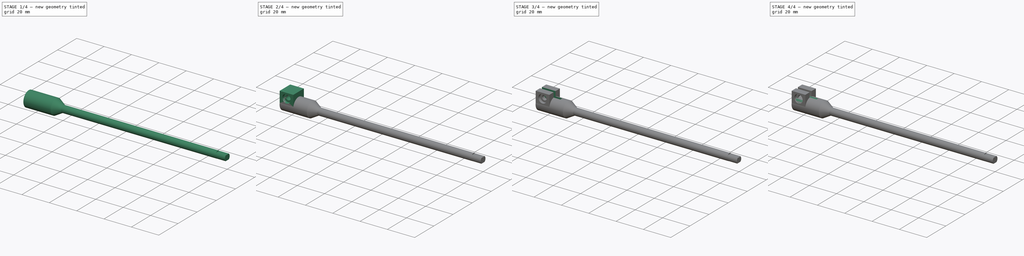
[diagram: build sequence overview — one tinted view per stage of 4, left to right]
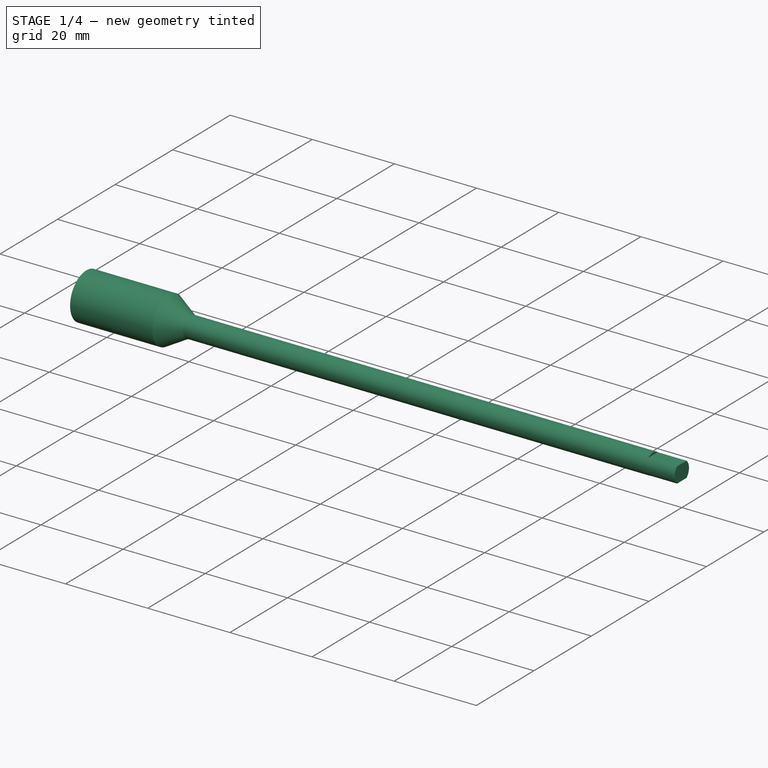
[diagram: stage 1 of 4 — iso view after this stage's code; geometry added in this stage tinted green]
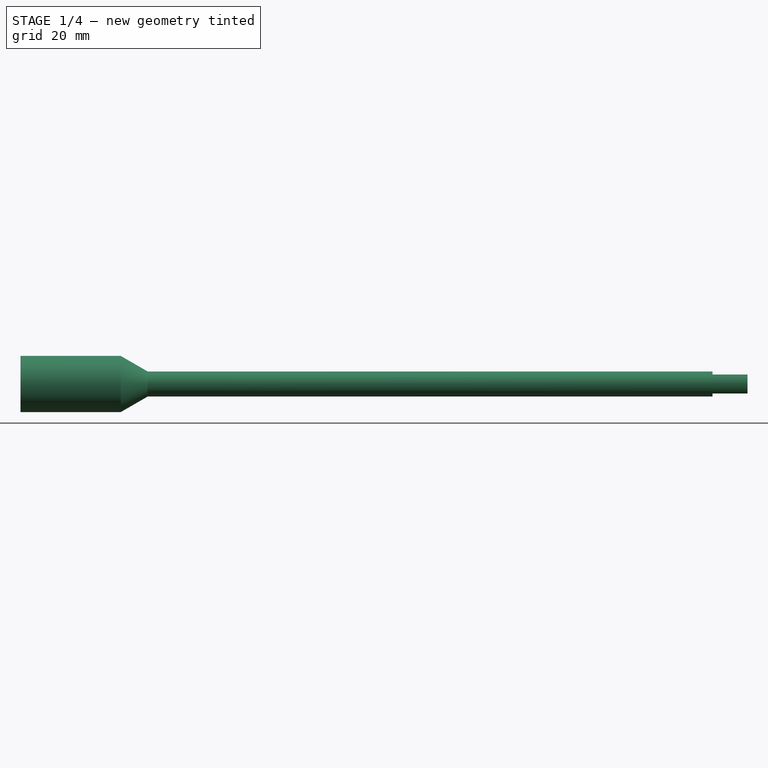
[diagram: stage 1 of 4 — front view after this stage's code; geometry added in this stage tinted green]
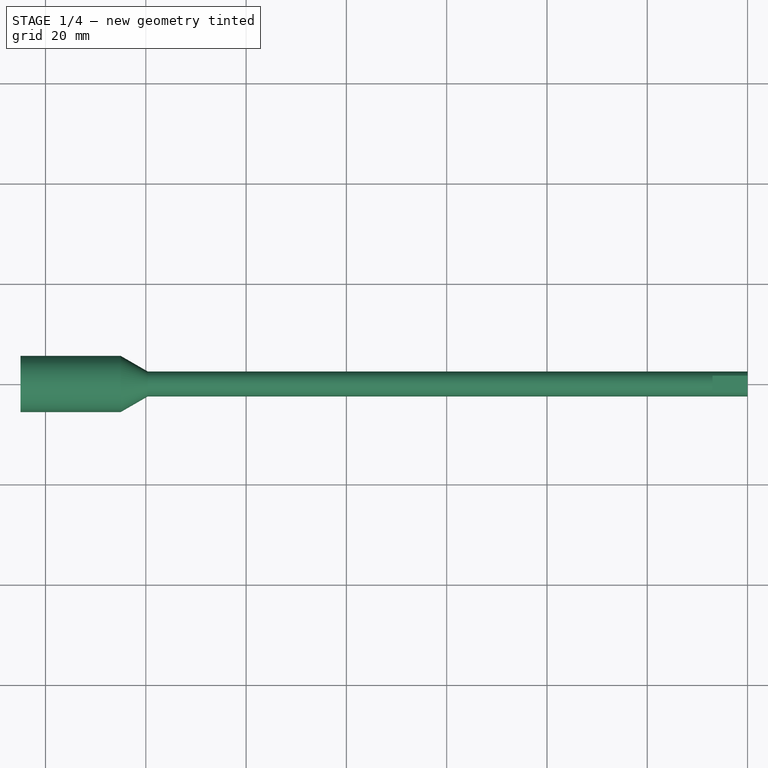
[diagram: stage 1 of 4 — top view after this stage's code; geometry added in this stage tinted green]
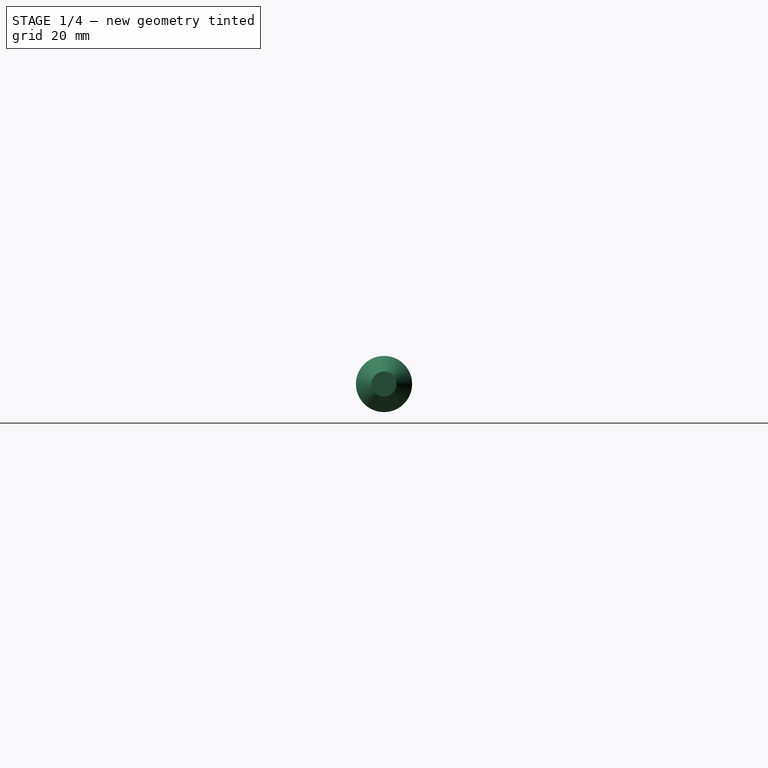
[diagram: stage 1 of 4 — right view after this stage's code; geometry added in this stage tinted green]
FCSTD DOCUMENT  (FreeCAD 2024.1R35694 (Git))
Label: shaft0
License: All rights reserved
LicenseURL: https://en.wikipedia.org/wiki/All_rights_reserved
objects: Sketcher::SketchObject×10, PartDesign::Pocket×5, PartDesign::Revolution×2, PartDesign::Body×2, PartDesign::Chamfer×2, PartDesign::Pad×1, PartDesign::Hole×1, PartDesign::Fillet×1, PartDesign::Groove×1, App::Part×1
note: 38 computed .brp shape members not serialized (recipe doc carries the construction recipe); baked Part::Feature solids carry a one-line shape summary decoded from their .brp

FEATURE [PartDesign::Body] Body  label="shaft0_skel"
  Group = -> [Sketch,Revolution,Sketch001,Pocket]
  Origin = -> Origin001
  Tip = -> Pocket
FEATURE [Sketcher::SketchObject] Sketch002
  FullyConstrained = true
  MapMode = 5
  Support = -> [XY_Plane002]
  sketch-geometry (8):
    g0: LineSegment StartX=0 StartY=0 StartZ=0 EndX=0 EndY=2.5 EndZ=0
    g1: LineSegment StartX=0 StartY=2.5 StartZ=0 EndX=-119.631 EndY=2.5 EndZ=0
    g2: LineSegment StartX=-119.631 StartY=2.5 StartZ=0 EndX=-125 EndY=5.6 EndZ=0
    g3: LineSegment StartX=-125 StartY=5.6 StartZ=0 EndX=-145 EndY=5.6 EndZ=0
    g4: LineSegment StartX=-145 StartY=5.6 StartZ=0 EndX=-145 EndY=2.6 EndZ=0
    g5: LineSegment StartX=-145 StartY=2.6 StartZ=0 EndX=-130 EndY=2.6 EndZ=0
    g6: LineSegment StartX=-130 StartY=2.6 StartZ=0 EndX=-130 EndY=0 EndZ=0
    g7: LineSegment StartX=-130 StartY=0 StartZ=0 EndX=0 EndY=0 EndZ=0
  constraints (23):
    c: Coincident(g-1,g0)
    c: PointOnObject(g0,g-2)
    c: Coincident(g0,g1)
    c: Horizontal(g1)
    c: Coincident(g1,g2)
    c: Coincident(g2,g3)
    c: Horizontal(g3)
    c: Coincident(g3,g4)
    c: Vertical(g4)
    c: Coincident(g4,g5)
    c: Horizontal(g5)
    c: Coincident(g5,g6)
    c: PointOnObject(g6,g-1)
    c: Vertical(g6)
    c: Coincident(g6,g7)
    c: Coincident(g7,g0)
    c: DistanceY(g-1,g5) = 2.6
    c: DistanceY(g4,g4) = 3
    c: DistanceY(g-1,g0) = 2.5
    c: DistanceX(g3,g3) = 20
    c: DistanceX(g5,g5) = 15
    c: DistanceX(g4,g-1) = 145
    c: Angle(g2,g3) = 0.523599
FEATURE [PartDesign::Revolution] Revolution001
  Angle = 360
  Angle2 = 60
  Axis = (1,0,0)
  Base = (0,0,0)
  Profile = -> Sketch002
  ReferenceAxis = -> Sketch002 [H_Axis]
  Refine = true
  Type = 0
FEATURE [Sketcher::SketchObject] Sketch003
  FullyConstrained = true
  MapMode = 5
  Placement = pos=(0,0,0) rot=(0.57735,0.57735,0.57735;2.0944rad)
  Support = -> [Revolution001]
  sketch-geometry (8):
    g0: LineSegment StartX=-7.5 StartY=1.9 StartZ=0 EndX=7.5 EndY=1.9 EndZ=0
    g1: LineSegment StartX=7.5 StartY=1.9 StartZ=0 EndX=7.5 EndY=6.9 EndZ=0
    g2: LineSegment StartX=7.5 StartY=6.9 StartZ=0 EndX=-7.5 EndY=6.9 EndZ=0
    g3: LineSegment StartX=-7.5 StartY=6.9 StartZ=0 EndX=-7.5 EndY=1.9 EndZ=0
    g4: LineSegment StartX=-7.5 StartY=-6.9 StartZ=0 EndX=7.5 EndY=-6.9 EndZ=0
    g5: LineSegment StartX=7.5 StartY=-6.9 StartZ=0 EndX=7.5 EndY=-1.9 EndZ=0
    g6: LineSegment StartX=7.5 StartY=-1.9 StartZ=0 EndX=-7.5 EndY=-1.9 EndZ=0
    g7: LineSegment StartX=-7.5 StartY=-1.9 StartZ=0 EndX=-7.5 EndY=-6.9 EndZ=0
  constraints (21):
    c: Coincident(g0,g1)
    c: Coincident(g1,g2)
    c: Coincident(g2,g3)
    c: Coincident(g3,g0)
    c: Horizontal(g0)
    c: Vertical(g1)
    c: Vertical(g3)
    c: Coincident(g4,g5)
    c: Coincident(g5,g6)
    c: Coincident(g6,g7)
    c: Coincident(g7,g4)
    c: Horizontal(g4)
    c: Vertical(g5)
    c: Vertical(g7)
    c: Symmetric(g5,g0,g-1)
    c: Symmetric(g6,g0,g-1)
    c: Equal(g3,g7)
    c: Symmetric(g2,g1,g-2)
    c: DistanceY(g5,g0) = 3.8
    c: DistanceY(g5,g5) = 5
    c: DistanceX(g4,g4) = 15
FEATURE [PartDesign::Pocket] Pocket001
  BaseFeature = -> Revolution001
  Direction = (-1,0,0)
  Length = 7
  Length2 = 5
  Profile = -> Sketch003
  ReferenceAxis = -> Sketch003 [N_Axis]
  Refine = true
  Type = 0
FEATURE [PartDesign::Chamfer] Chamfer
  Angle = 15
  Base = -> Pocket001 [Edge20]
  BaseFeature = -> Pocket001
  ChamferType = 2
  FlipDirection = true
  Refine = true
  Size = 2
  Size2 = 1
  SupportTransform = false
  UseAllEdges = false
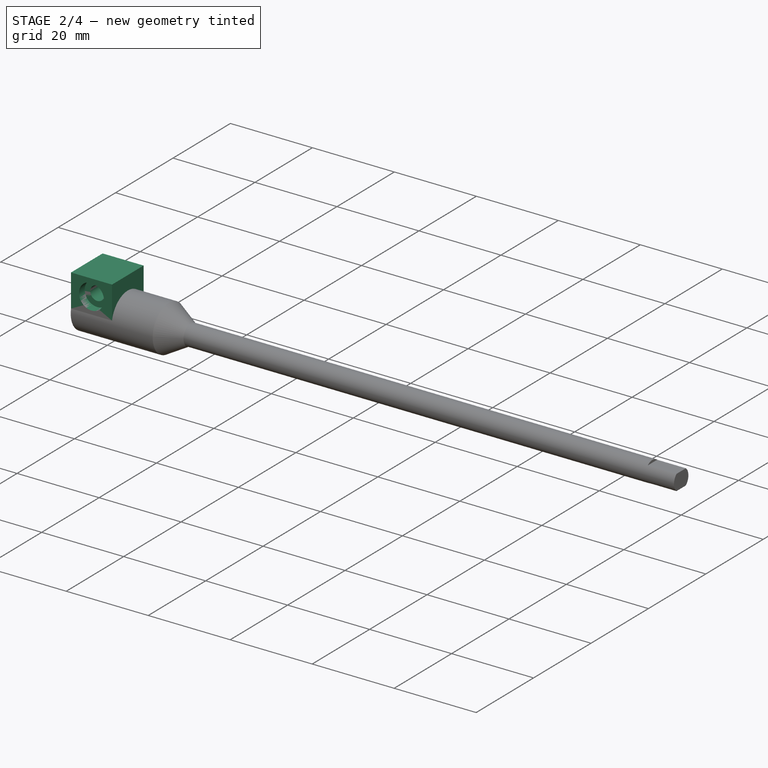
[diagram: stage 2 of 4 — iso view after this stage's code; geometry added in this stage tinted green]
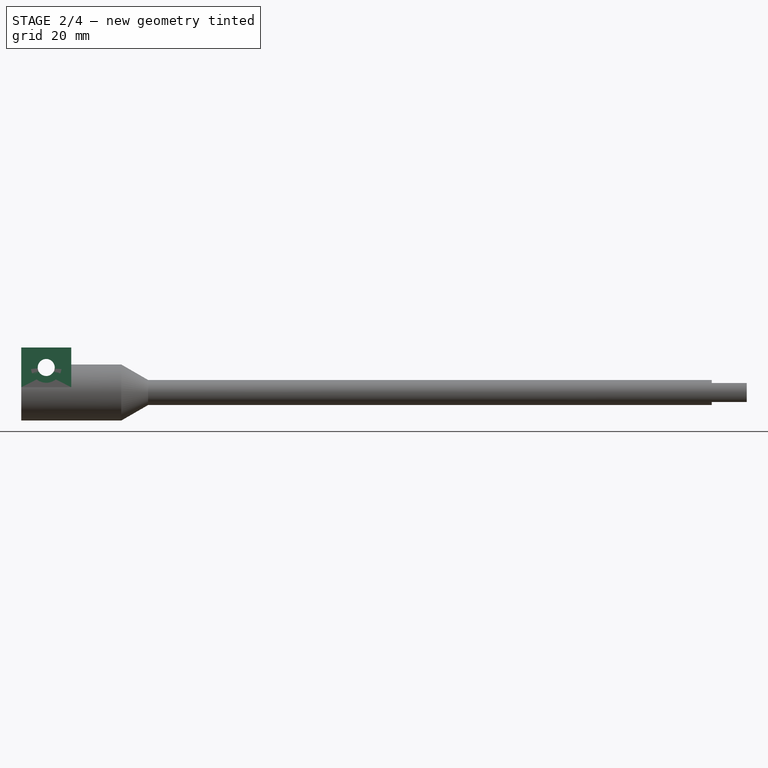
[diagram: stage 2 of 4 — front view after this stage's code; geometry added in this stage tinted green]
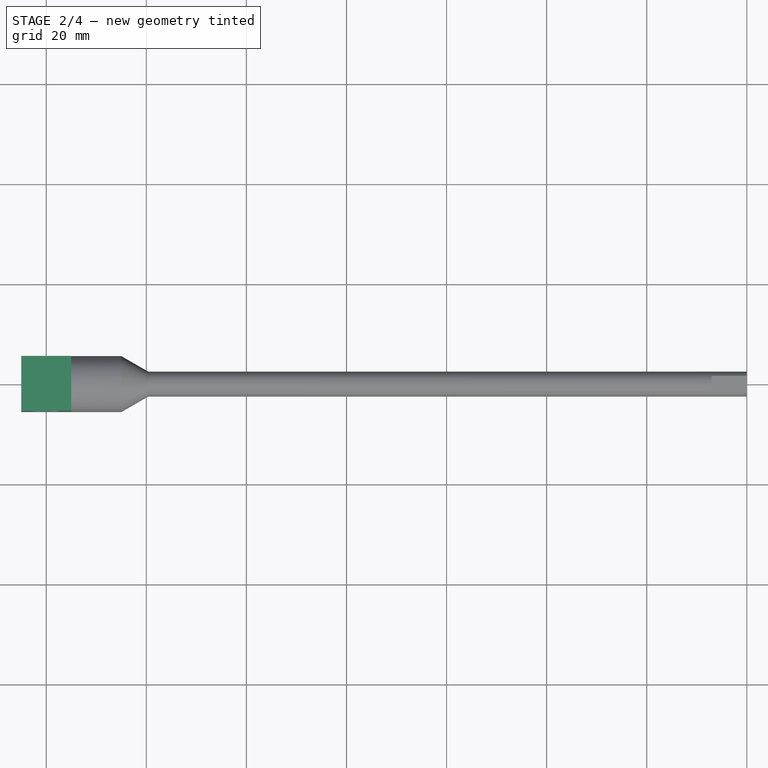
[diagram: stage 2 of 4 — top view after this stage's code; geometry added in this stage tinted green]
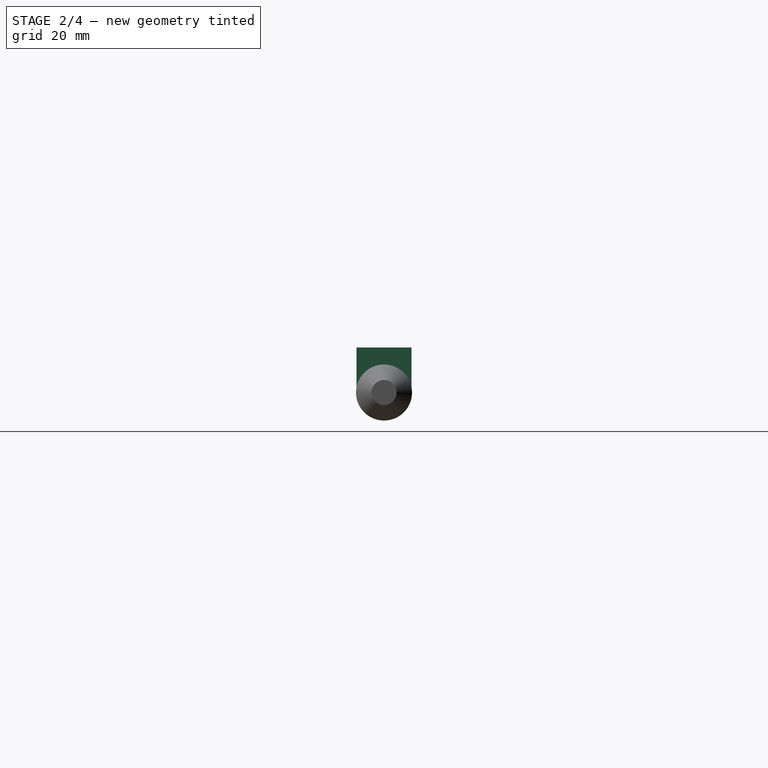
[diagram: stage 2 of 4 — right view after this stage's code; geometry added in this stage tinted green]
FEATURE [Sketcher::SketchObject] Sketch004
  ExternalGeometry = -> [Chamfer]
  FullyConstrained = true
  MapMode = 5
  Placement = pos=(-145,0,0) rot=(0.57735,-0.57735,-0.57735;2.0944rad)
  Support = -> [Chamfer]
  sketch-geometry (4):
    g0: ArcOfCircle CenterX=0 CenterY=0 CenterZ=0 NormalX=0 NormalY=0 NormalZ=1 AngleXU=0 Radius=5.6 StartAngle=0.189265 EndAngle=2.95233
    g1: LineSegment StartX=-5.5 StartY=1.05357 StartZ=0 EndX=-5.5 EndY=9 EndZ=0
    g2: LineSegment StartX=-5.5 StartY=9 StartZ=0 EndX=5.5 EndY=9 EndZ=0
    g3: LineSegment StartX=5.5 StartY=9 StartZ=0 EndX=5.5 EndY=1.05357 EndZ=0
  constraints (11):
    c: Coincident(g0,g-3)
    c: Vertical(g1)
    c: Coincident(g1,g2)
    c: Coincident(g2,g3)
    c: Vertical(g3)
    c: Symmetric(g1,g2,g-2)
    c: Coincident(g0,g1)
    c: Coincident(g0,g3)
    c: Equal(g0,g-3)
    c: DistanceX(g2,g2) = 11
    c: DistanceY(g-1,g2) = 9
FEATURE [PartDesign::Pad] Pad
  BaseFeature = -> Chamfer
  Direction = (-1,0,0)
  Length = 10
  Length2 = 10
  Profile = -> Sketch004
  ReferenceAxis = -> Sketch004 [N_Axis]
  Refine = true
  Reversed = true
  Type = 0
FEATURE [Sketcher::SketchObject] Sketch005
  ExternalGeometry = -> [Pad]
  FullyConstrained = true
  MapMode = 5
  Placement = pos=(0,-5.5,0) rot=(1,0,0;1.5708rad)
  Support = -> [Pad]
  sketch-geometry (1):
    g0: Circle CenterX=-140 CenterY=5 CenterZ=0 NormalX=0 NormalY=0 NormalZ=1 AngleXU=0 Radius=1.5
  constraints (3):
    c: DistanceX(g-3,g0) = 5
    c: DistanceY(g-1,g0) = 5
    c: Diameter(g0) = 3
FEATURE [PartDesign::Hole] Hole
  BaseFeature = -> Pad
  CustomThreadClearance = 0
  Depth = 25
  DepthType = 0
  Diameter = 3.4
  DrillForDepth = false
  DrillPoint = 1
  DrillPointAngle = 118
  HoleCutCountersinkAngle = 90
  HoleCutCustomValues = false
  HoleCutDepth = 2
  HoleCutDiameter = 6.1
  HoleCutType = 1
  ModelThread = false
  Profile = -> Sketch005
  Refine = true
  Tapered = false
  TaperedAngle = 90
  ThreadClass = 0
  ThreadDepth = 25
  ThreadDepthType = 0
  ThreadDirection = 0
  ThreadFit = 0
  ThreadSize = 9
  ThreadType = 1
  Threaded = false
  UseCustomThreadClearance = false
FEATURE [Sketcher::SketchObject] Sketch006
  ExternalGeometry = -> [Hole]
  FullyConstrained = true
  MapMode = 5
  Placement = pos=(0,5.5,0) rot=(0,0.707107,0.707107;3.14159rad)
  Support = -> [Hole]
  sketch-geometry (7):
    g0: LineSegment StartX=143.522 StartY=5 StartZ=0 EndX=141.761 EndY=8.05 EndZ=0
    g1: LineSegment StartX=141.761 StartY=8.05 StartZ=0 EndX=138.239 EndY=8.05 EndZ=0
    g2: LineSegment StartX=138.239 StartY=8.05 StartZ=0 EndX=136.478 EndY=5 EndZ=0
    g3: LineSegment StartX=136.478 StartY=5 StartZ=0 EndX=138.239 EndY=1.95 EndZ=0
    g4: LineSegment StartX=138.239 StartY=1.95 StartZ=0 EndX=141.761 EndY=1.95 EndZ=0
    g5: LineSegment StartX=141.761 StartY=1.95 StartZ=0 EndX=143.522 EndY=5 EndZ=0
    g6: Circle CenterX=140 CenterY=5 CenterZ=0 NormalX=0 NormalY=0 NormalZ=1 AngleXU=0 Radius=3.52184
  constraints (16):
    c: Coincident(g0,g1)
    c: Coincident(g1,g2)
    c: Coincident(g2,g3)
    c: Coincident(g3,g4)
    c: Coincident(g4,g5)
    c: Coincident(g5,g0)
    c: Equal(g0, g1-g5) x5
    c: PointOnObject(g0,g6)
    c: PointOnObject(g1,g6)
    c: PointOnObject(g2,g6)
    c: PointOnObject(g3,g6)
    c: PointOnObject(g4,g6)
    c: PointOnObject(g5,g6)
    c: Coincident(g6,g-3)
    c: DistanceY(g4,g0) = 6.1
    c: Horizontal(g4)
FEATURE [PartDesign::Pocket] Pocket002
  BaseFeature = -> Hole
  Direction = (0,-1,2e-16)
  Length = 3
  Length2 = 5
  Profile = -> Sketch006
  ReferenceAxis = -> Sketch006 [N_Axis]
  Refine = true
  Type = 0
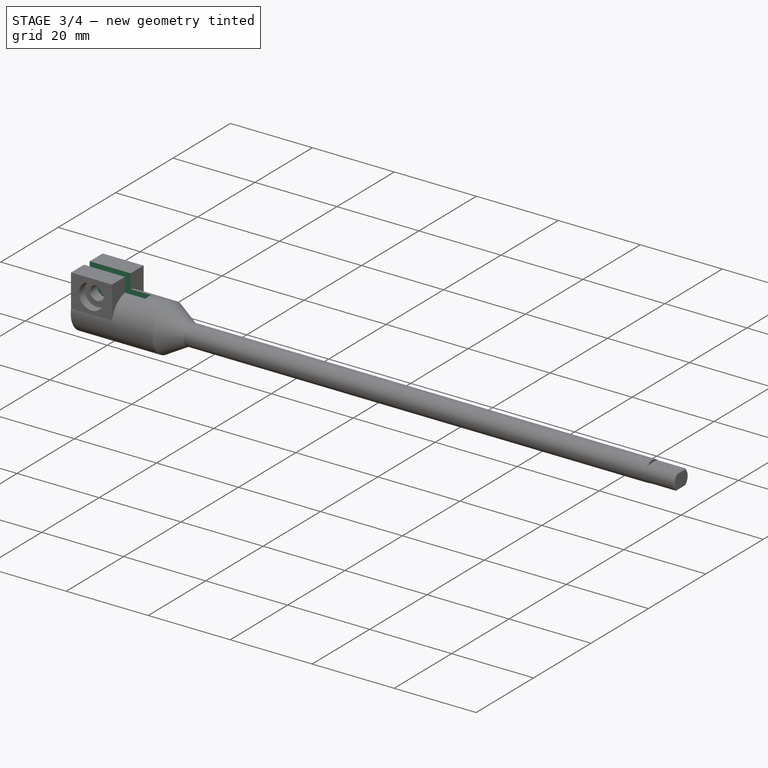
[diagram: stage 3 of 4 — iso view after this stage's code; geometry added in this stage tinted green]
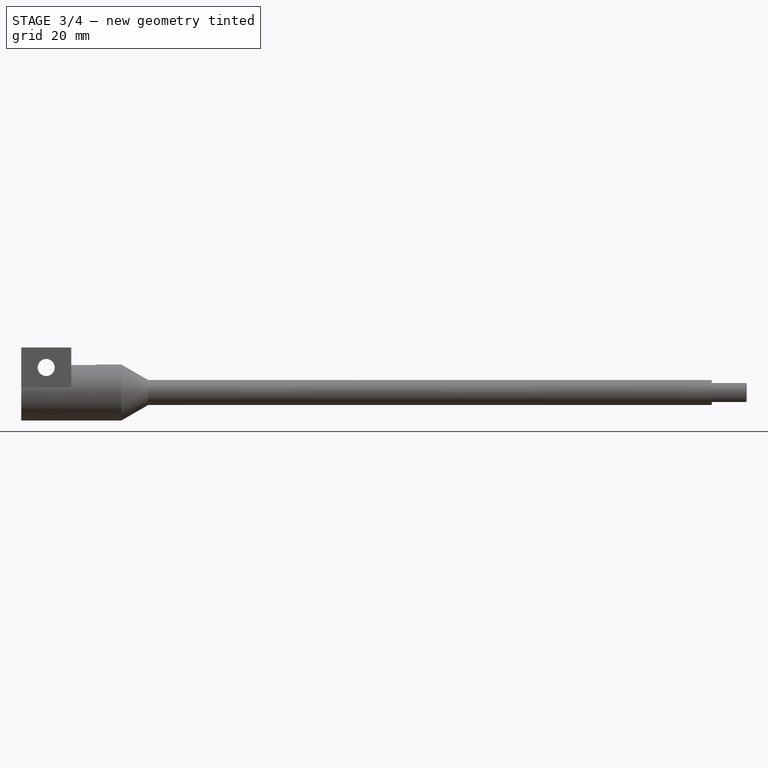
[diagram: stage 3 of 4 — front view after this stage's code; geometry added in this stage tinted green]
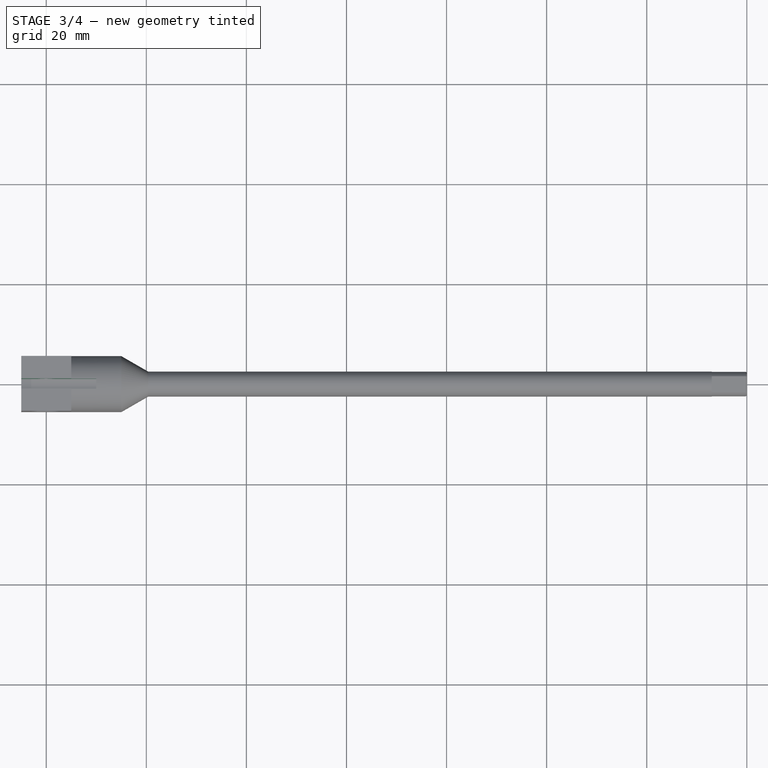
[diagram: stage 3 of 4 — top view after this stage's code; geometry added in this stage tinted green]
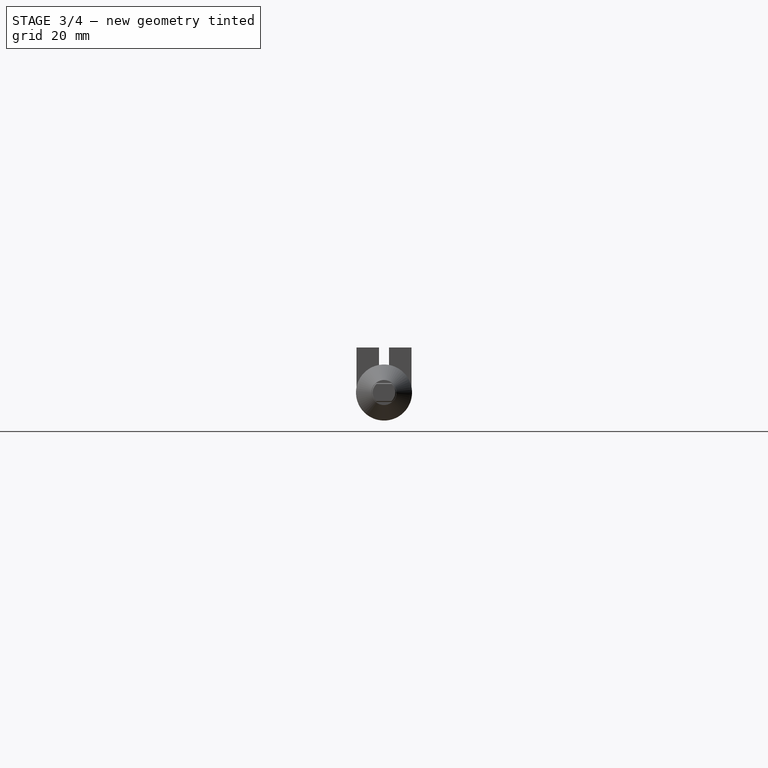
[diagram: stage 3 of 4 — right view after this stage's code; geometry added in this stage tinted green]
FEATURE [Sketcher::SketchObject] Sketch007
  FullyConstrained = true
  MapMode = 5
  Placement = pos=(0,0,0) rot=(0.57735,0.57735,0.57735;2.0944rad)
  Support = -> [Pocket002]
  sketch-geometry (2):
    g0: Circle CenterX=0 CenterY=0 CenterZ=0 NormalX=0 NormalY=0 NormalZ=1 AngleXU=0 Radius=2.45
    g1: Circle CenterX=0 CenterY=0 CenterZ=0 NormalX=0 NormalY=0 NormalZ=1 AngleXU=0 Radius=5
  constraints (4):
    c: Coincident(g1,g0)
    c: Diameter(g0) = 4.9
    c: Diameter(g1) = 10
    c: Coincident(g0,g-1)
FEATURE [PartDesign::Pocket] Pocket003
  BaseFeature = -> Pocket002
  Direction = (-1,0,0)
  Length = 0
  Length2 = 5
  Profile = -> Sketch007
  ReferenceAxis = -> Sketch007 [N_Axis]
  Refine = true
  Type = 3
  UpToFace = -> Pocket002 [Face24]
FEATURE [PartDesign::Fillet] Fillet
  Base = -> Pocket003
  BaseFeature = -> Pocket003
  Radius = 3
  Refine = true
  SupportTransform = false
  UseAllEdges = false
FEATURE [Sketcher::SketchObject] Sketch008
  FullyConstrained = true
  MapMode = 5
  Placement = pos=(-145,0,0) rot=(0.57735,-0.57735,-0.57735;2.0944rad)
  Support = -> [Fillet]
  sketch-geometry (4):
    g0: LineSegment StartX=1 StartY=0 StartZ=0 EndX=1 EndY=15 EndZ=0
    g1: LineSegment StartX=1 StartY=15 StartZ=0 EndX=-1 EndY=15 EndZ=0
    g2: LineSegment StartX=-1 StartY=15 StartZ=0 EndX=-1 EndY=0 EndZ=0
    g3: LineSegment StartX=-1 StartY=0 StartZ=0 EndX=1 EndY=0 EndZ=0
  constraints (11):
    c: Coincident(g0,g1)
    c: Coincident(g1,g2)
    c: Coincident(g2,g3)
    c: Coincident(g3,g0)
    c: Vertical(g0)
    c: Vertical(g2)
    c: Horizontal(g3)
    c: PointOnObject(g0,g-1)
    c: Symmetric(g1,g0,g-2)
    c: DistanceX(g1,g1) = 2
    c: DistanceY(g0,g0) = 15
FEATURE [PartDesign::Pocket] Pocket004
  BaseFeature = -> Fillet
  Direction = (1,0,0)
  Length = 15
  Length2 = 5
  Profile = -> Sketch008
  ReferenceAxis = -> Sketch008 [N_Axis]
  Refine = true
  Type = 0
FEATURE [PartDesign::Chamfer] Chamfer001
  Angle = 45
  Base = -> Pocket004 [Edge86,Edge87,Edge85,Edge81,Edge84]
  BaseFeature = -> Pocket004
  ChamferType = 0
  FlipDirection = false
  Refine = true
  Size = 0.2
  Size2 = 1
  SupportTransform = false
  UseAllEdges = false
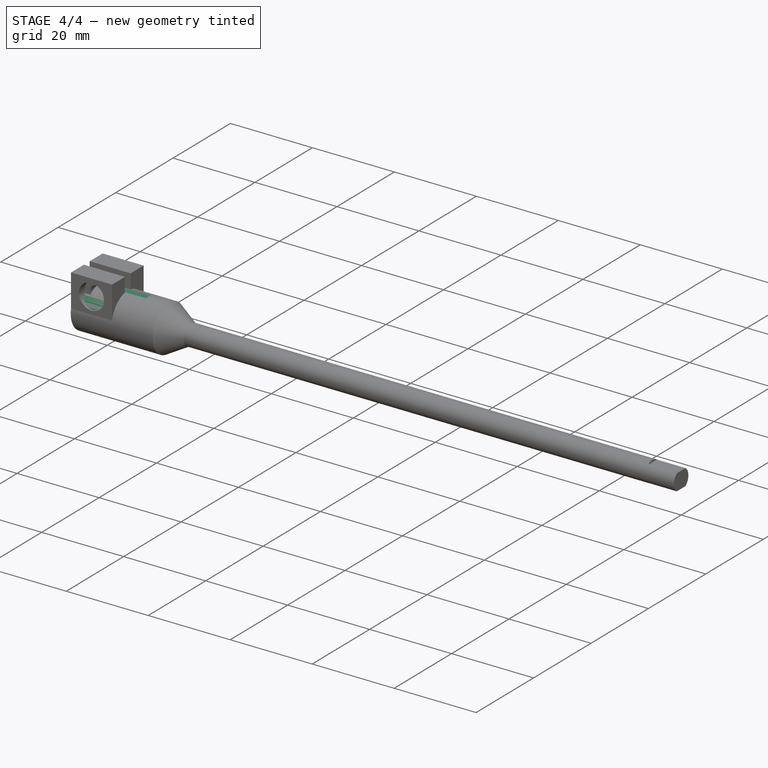
[diagram: stage 4 of 4 — iso view after this stage's code; geometry added in this stage tinted green]
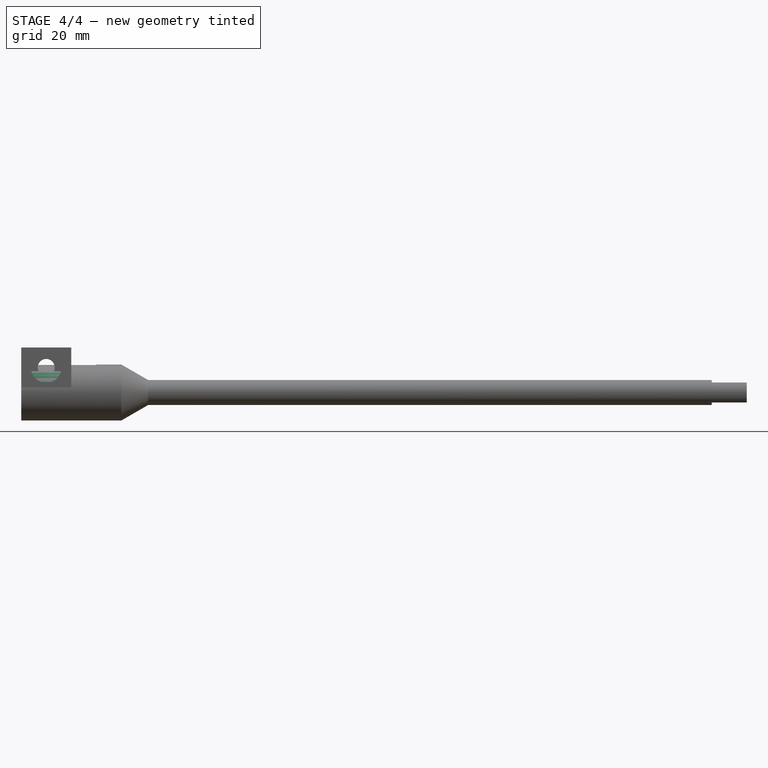
[diagram: stage 4 of 4 — front view after this stage's code; geometry added in this stage tinted green]
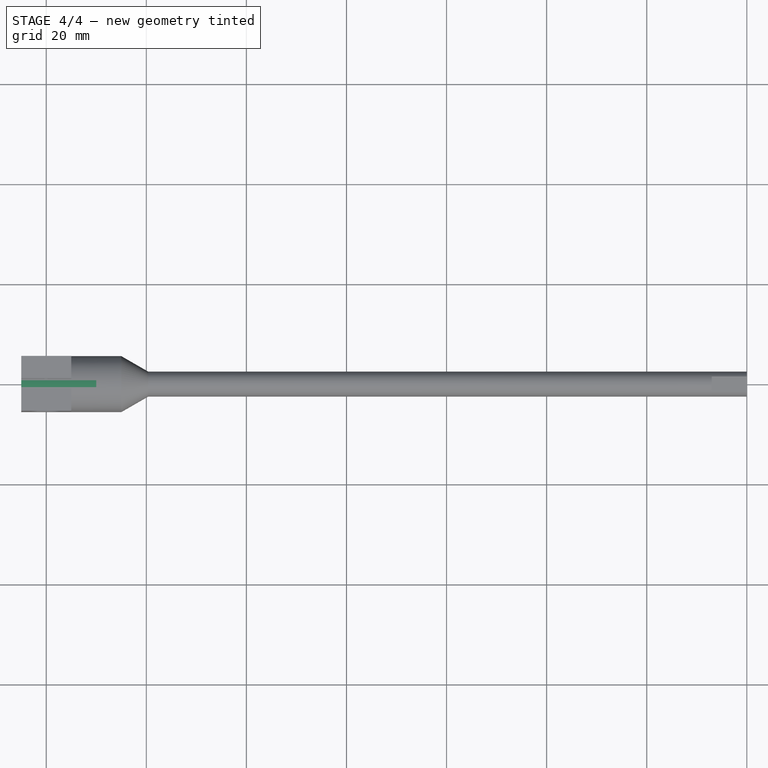
[diagram: stage 4 of 4 — top view after this stage's code; geometry added in this stage tinted green]
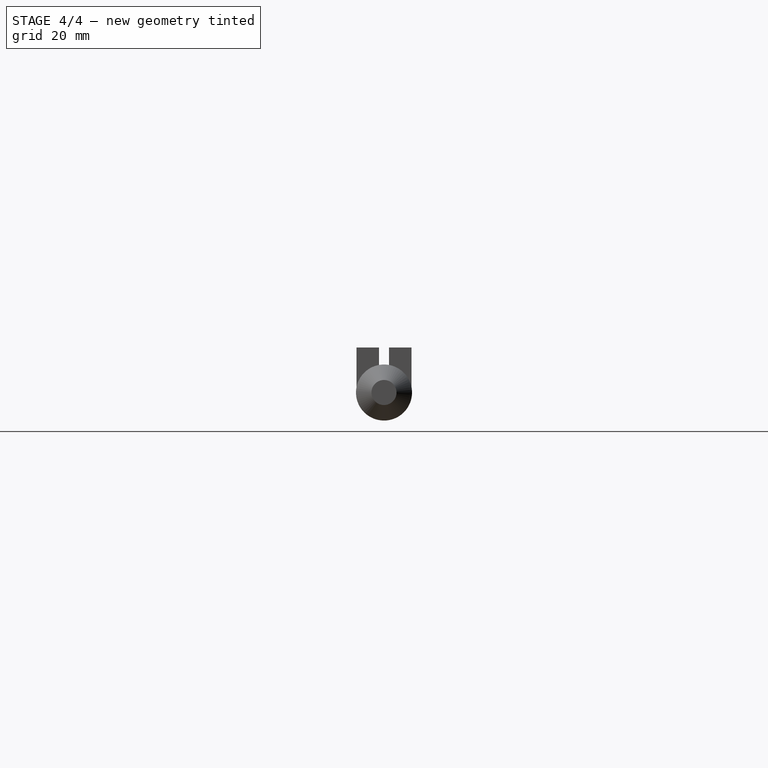
[diagram: stage 4 of 4 — right view after this stage's code; geometry added in this stage tinted green]
FEATURE [Sketcher::SketchObject] Sketch
  FullyConstrained = true
  MapMode = 5
  Support = -> [XY_Plane001]
  sketch-geometry (8):
    g0: LineSegment StartX=0 StartY=0 StartZ=0 EndX=0 EndY=2.5 EndZ=0
    g1: LineSegment StartX=0 StartY=2.5 StartZ=0 EndX=-119.804 EndY=2.5 EndZ=0
    g2: LineSegment StartX=-119.804 StartY=2.5 StartZ=0 EndX=-125 EndY=5.5 EndZ=0
    g3: LineSegment StartX=-125 StartY=5.5 StartZ=0 EndX=-145 EndY=5.5 EndZ=0
    g4: LineSegment StartX=-145 StartY=5.5 StartZ=0 EndX=-145 EndY=2.5 EndZ=0
    g5: LineSegment StartX=-145 StartY=2.5 StartZ=0 EndX=-130 EndY=2.5 EndZ=0
    g6: LineSegment StartX=-130 StartY=2.5 StartZ=0 EndX=-130 EndY=0 EndZ=0
    g7: LineSegment StartX=-130 StartY=0 StartZ=0 EndX=0 EndY=0 EndZ=0
  constraints (23):
    c: Coincident(g-1,g0)
    c: PointOnObject(g0,g-2)
    c: Coincident(g0,g1)
    c: Horizontal(g1)
    c: Coincident(g1,g2)
    c: Coincident(g2,g3)
    c: Horizontal(g3)
    c: Coincident(g3,g4)
    c: Vertical(g4)
    c: Coincident(g4,g5)
    c: Horizontal(g5)
    c: Coincident(g5,g6)
    c: PointOnObject(g6,g-1)
    c: Vertical(g6)
    c: Coincident(g6,g7)
    c: Coincident(g7,g0)
    c: DistanceY(g-1,g5) = 2.5
    c: DistanceY(g4,g4) = 3
    c: DistanceY(g-1,g0) = 2.5
    c: DistanceX(g3,g3) = 20
    c: DistanceX(g5,g5) = 15
    c: DistanceX(g4,g-1) = 145
    c: Angle(g2,g3) = 0.523599
FEATURE [PartDesign::Revolution] Revolution
  Angle = 360
  Angle2 = 60
  Axis = (1,0,0)
  Base = (0,0,0)
  Profile = -> Sketch
  ReferenceAxis = -> Sketch [H_Axis]
  Refine = true
  Type = 0
FEATURE [Sketcher::SketchObject] Sketch001
  FullyConstrained = true
  MapMode = 5
  Placement = pos=(0,0,0) rot=(0.57735,0.57735,0.57735;2.0944rad)
  Support = -> [Revolution]
  sketch-geometry (8):
    g0: LineSegment StartX=-7.5 StartY=2 StartZ=0 EndX=7.5 EndY=2 EndZ=0
    g1: LineSegment StartX=7.5 StartY=2 StartZ=0 EndX=7.5 EndY=7 EndZ=0
    g2: LineSegment StartX=7.5 StartY=7 StartZ=0 EndX=-7.5 EndY=7 EndZ=0
    g3: LineSegment StartX=-7.5 StartY=7 StartZ=0 EndX=-7.5 EndY=2 EndZ=0
    g4: LineSegment StartX=-7.5 StartY=-7 StartZ=0 EndX=7.5 EndY=-7 EndZ=0
    g5: LineSegment StartX=7.5 StartY=-7 StartZ=0 EndX=7.5 EndY=-2 EndZ=0
    g6: LineSegment StartX=7.5 StartY=-2 StartZ=0 EndX=-7.5 EndY=-2 EndZ=0
    g7: LineSegment StartX=-7.5 StartY=-2 StartZ=0 EndX=-7.5 EndY=-7 EndZ=0
  constraints (21):
    c: Coincident(g0,g1)
    c: Coincident(g1,g2)
    c: Coincident(g2,g3)
    c: Coincident(g3,g0)
    c: Horizontal(g0)
    c: Vertical(g1)
    c: Vertical(g3)
    c: Coincident(g4,g5)
    c: Coincident(g5,g6)
    c: Coincident(g6,g7)
    c: Coincident(g7,g4)
    c: Horizontal(g4)
    c: Vertical(g5)
    c: Vertical(g7)
    c: Symmetric(g5,g0,g-1)
    c: Symmetric(g6,g0,g-1)
    c: Equal(g3,g7)
    c: Symmetric(g2,g1,g-2)
    c: DistanceY(g5,g0) = 4
    c: DistanceY(g5,g5) = 5
    c: DistanceX(g4,g4) = 15
FEATURE [PartDesign::Pocket] Pocket
  BaseFeature = -> Revolution
  Direction = (-1,0,0)
  Length = 7
  Length2 = 5
  Profile = -> Sketch001
  ReferenceAxis = -> Sketch001 [N_Axis]
  Refine = true
  Type = 0
FEATURE [Sketcher::SketchObject] Sketch009
  ExternalGeometry = -> [Chamfer001]
  FullyConstrained = true
  MapMode = 5
  Support = -> [XY_Plane002]
  sketch-geometry (4):
    g0: LineSegment StartX=-7 StartY=3.3 StartZ=0 EndX=-7 EndY=2.3 EndZ=0
    g1: LineSegment StartX=-7 StartY=2.3 StartZ=0 EndX=-4 EndY=2.3 EndZ=0
    g2: LineSegment StartX=-4 StartY=2.3 StartZ=0 EndX=-4 EndY=3.3 EndZ=0
    g3: LineSegment StartX=-4 StartY=3.3 StartZ=0 EndX=-7 EndY=3.3 EndZ=0
  constraints (12):
    c: Coincident(g0,g1)
    c: Coincident(g1,g2)
    c: Coincident(g2,g3)
    c: Coincident(g3,g0)
    c: Vertical(g0)
    c: Vertical(g2)
    c: Horizontal(g1)
    c: Horizontal(g3)
    c: PointOnObject(g-3,g0)
    c: DistanceY(g-1,g1) = 2.3
    c: DistanceX(g3,g3) = 3
    c: DistanceY(g2,g2) = 1
FEATURE [PartDesign::Groove] Groove
  Angle = 360
  Angle2 = 60
  Axis = (1,0,0)
  Base = (0,0,0)
  BaseFeature = -> Chamfer001
  Profile = -> Sketch009
  ReferenceAxis = -> Sketch009 [H_Axis]
  Refine = true
  Reversed = true
  Type = 0
FEATURE [PartDesign::Body] Body001  label="shaft0s"
  Group = -> [Sketch002,Revolution001,Sketch003,Pocket001,Chamfer,Sketch004,Pad,Sketch005,Hole,Sketch006,Pocket002,Sketch007,Pocket003,Fillet,Sketch008,Pocket004,Chamfer001,Sketch009,Groove]
  Origin = -> Origin002
  Tip = -> Groove
FEATURE [App::Part] Part  label="shaft0"
  Group = -> [Body,Body001]
  Origin = -> Origin
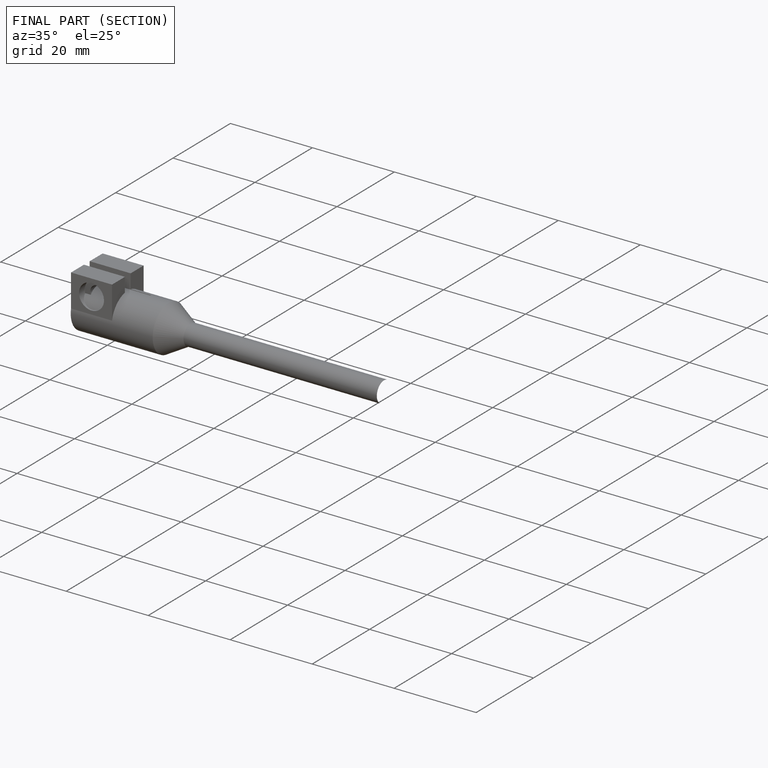
[diagram: finished part — half-section view (interior)]
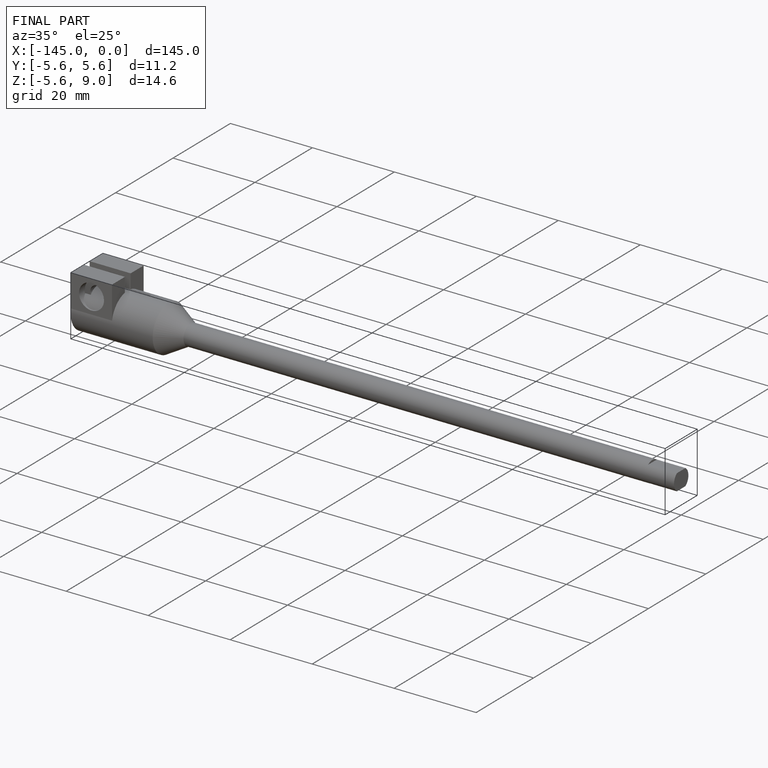
[diagram: finished part — iso view with bounding-box wireframe]
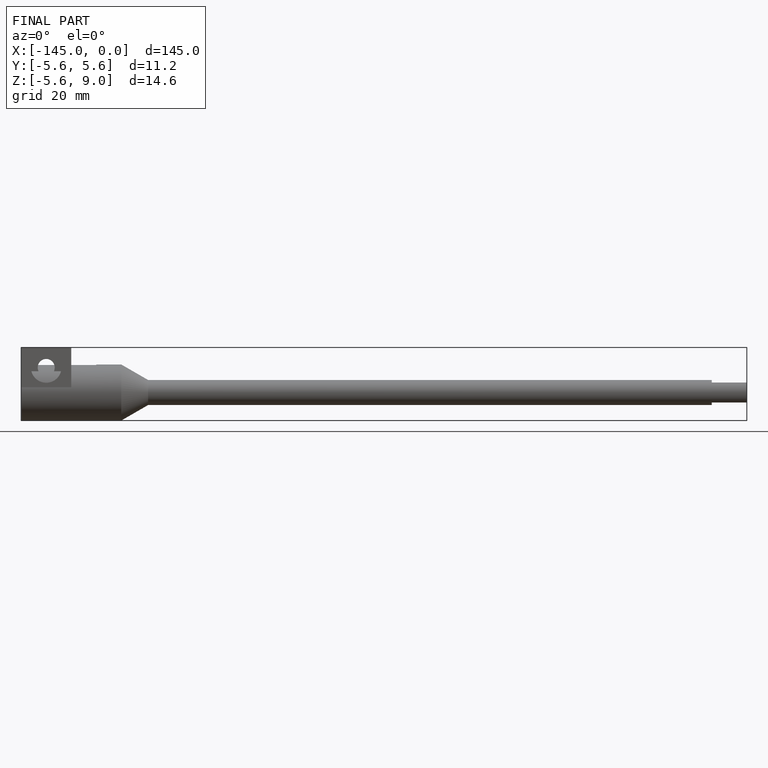
[diagram: finished part — front view with bounding-box wireframe]
